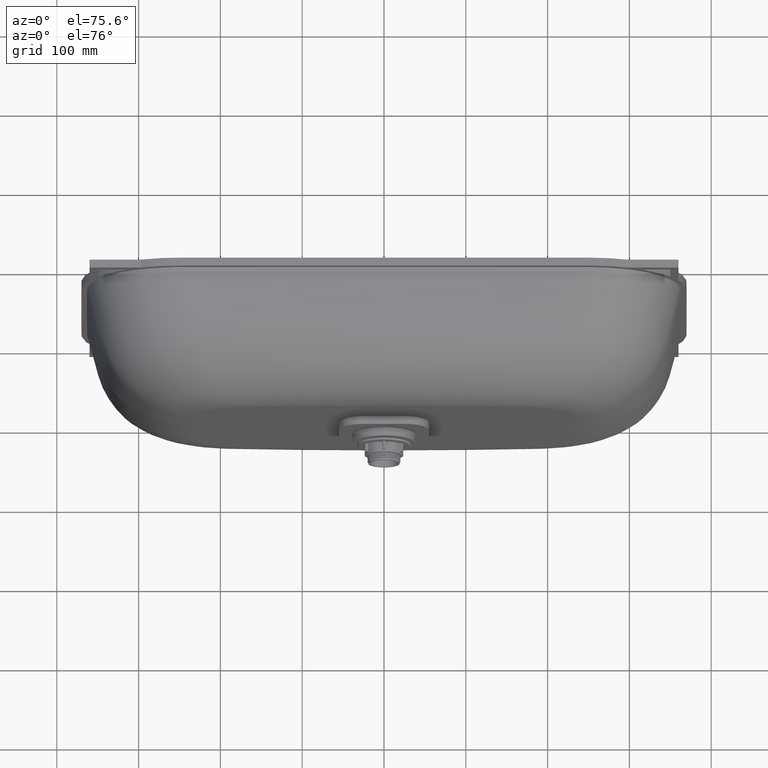
[diagram: clean part render]
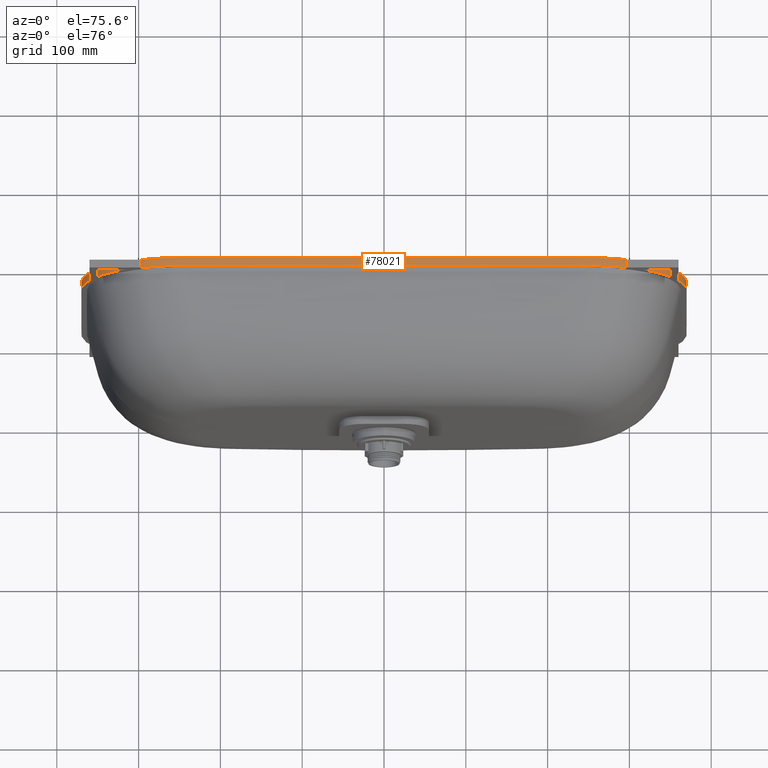
[diagram: same view with one face highlighted and labeled with its STEP entity id]
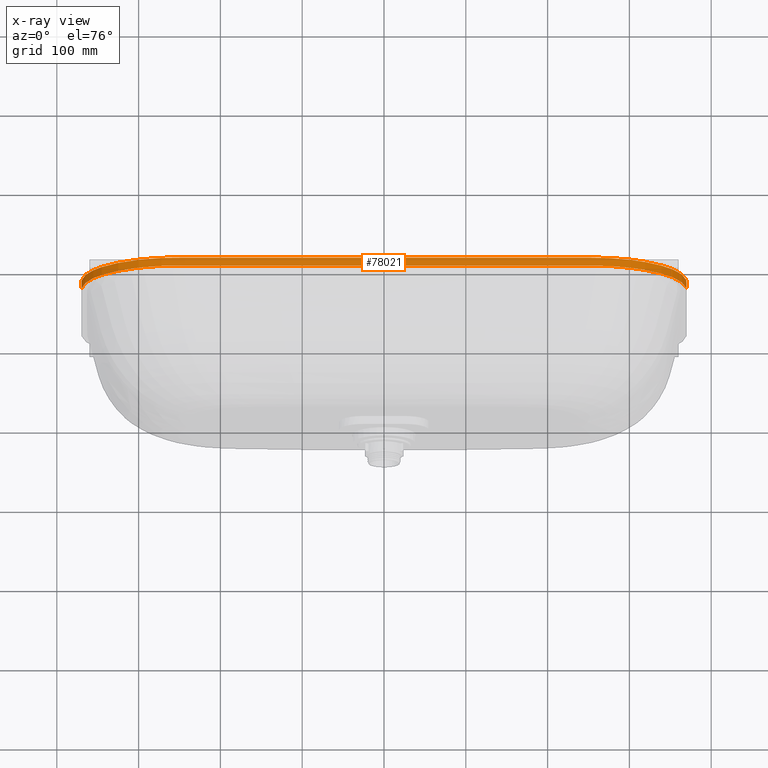
[diagram: x-ray of the same camera — body ghosted, the highlighted face saturated]
A machine part, auxiliary view. The second image highlights one B-rep face of the part: STEP entity #78021.
The next image is the same camera in x-ray: the body ghosted, the highlighted face saturated — about 0% of this face is hidden behind the body in this view.
In plain terms, the highlighted face is a freeform B-spline surface patch.
Its self-contained STEP definition (entity closure, byte-faithful):
#113 = CARTESIAN_POINT ( 'NONE',  ( 369.9837355351535280, 3.469446951953614189E-14, 112.2304330767920248 ) ) ;
#133 = CARTESIAN_POINT ( 'NONE',  ( -289.4804807030344023, -9.999999999999928946, 223.4557360990969528 ) ) ;
#179 = CARTESIAN_POINT ( 'NONE',  ( -369.2231796589291548, -9.999999999999960920, 123.9083132636468463 ) ) ;
#523 = CARTESIAN_POINT ( 'NONE',  ( 369.9999973128919919, -9.999999999999968026, 103.4197589538134423 ) ) ;
#545 = CARTESIAN_POINT ( 'NONE',  ( -254.1704036494610932, 7.285838599102589797E-14, 229.9357047427391478 ) ) ;
#591 = CARTESIAN_POINT ( 'NONE',  ( -272.5347273984072558, -9.999999999999928946, 227.9402078853941305 ) ) ;
#938 = CARTESIAN_POINT ( 'NONE',  ( 369.9999999808321149, 2.081668171172168513E-14, 64.89067556598752162 ) ) ;
#958 = CARTESIAN_POINT ( 'NONE',  ( -245.3670214626337724, -9.999999999999927169, 230.0000054136309586 ) ) ;
#1002 = CARTESIAN_POINT ( 'NONE',  ( -235.2282897767611303, -9.999999999999927169, 230.0000025992095516 ) ) ;
#1372 = CARTESIAN_POINT ( 'NONE',  ( -194.6720158728519436, 7.285838599102589797E-14, 230.0000000356702969 ) ) ;
#1421 = CARTESIAN_POINT ( 'NONE',  ( 64.89067382028734698, -9.999999999999927169, 229.9999999998671285 ) ) ;
#1779 = LINE ( 'NONE', #27400, #68443 ) ;
#1793 = CARTESIAN_POINT ( 'NONE',  ( -1.838806884535415520E-13, -9.999999999999927169, 229.9999999999805880 ) ) ;
#1841 = CARTESIAN_POINT ( 'NONE',  ( 248.4051379303400324, -9.999999999999927169, 230.0000288654553344 ) ) ;
#2211 = CARTESIAN_POINT ( 'NONE',  ( 178.4493543980382242, 7.285838599102589797E-14, 229.9999999906543451 ) ) ;
#2258 = CARTESIAN_POINT ( 'NONE',  ( 315.4333475073833597, -9.999999999999934275, 211.1954338164224225 ) ) ;
#2359 = CARTESIAN_POINT ( 'NONE',  ( 370.0000000003951754, 5.118853262884848698E-15, 16.22266841846510488 ) ) ;
#2628 = CARTESIAN_POINT ( 'NONE',  ( 245.3670214626335166, -9.999999999999927169, 230.0000054136308165 ) ) ;
#2672 = CARTESIAN_POINT ( 'NONE',  ( 369.9985107857468734, -9.999999999999966249, 110.8386633332187330 ) ) ;
#3041 = CARTESIAN_POINT ( 'NONE',  ( 252.1423367717181065, 7.285838599102589797E-14, 229.9854392652007959 ) ) ;
#3083 = CARTESIAN_POINT ( 'NONE',  ( 370.0000000051377924, -9.999999999999984013, 48.66800487696834665 ) ) ;
#3204 = CARTESIAN_POINT ( 'NONE',  ( -369.9999999215502839, 2.772712417528809835E-14, 87.87279466569543729 ) ) ;
#3604 = CARTESIAN_POINT ( 'NONE',  ( -369.6864430236645376, 3.758052570092898083E-14, 119.1001921969900650 ) ) ;
#4020 = CARTESIAN_POINT ( 'NONE',  ( -280.3363205952126123, 7.138488588416026799E-14, 226.2329616254816358 ) ) ;
#4447 = CARTESIAN_POINT ( 'NONE',  ( -241.3132199434998597, 7.257352404517443848E-14, 229.9999933736821731 ) ) ;
#4791 = CARTESIAN_POINT ( 'NONE',  ( -370.0000000051376787, 1.561251128379126385E-14, 48.66800487696811217 ) ) ;
#4860 = CARTESIAN_POINT ( 'NONE',  ( 32.44533689492779160, 7.257352613603510902E-14, 230.0000000000372893 ) ) ;
#5202 = CARTESIAN_POINT ( 'NONE',  ( -369.9999973128920487, -9.999999999999968026, 103.4197589538131723 ) ) ;
#5269 = CARTESIAN_POINT ( 'NONE',  ( 247.0602996470166488, 7.257352088615577570E-14, 229.9999833621211280 ) ) ;
#5595 = VERTEX_POINT ( 'NONE', #9767 ) ;
#5597 = CARTESIAN_POINT ( 'NONE',  ( 289.4804807030340612, -9.999999999999928946, 223.4557360990970380 ) ) ;
#5618 = CARTESIAN_POINT ( 'NONE',  ( -369.9985107857468734, 3.469446951953614189E-14, 110.8386633332183635 ) ) ;
#5686 = CARTESIAN_POINT ( 'NONE',  ( 301.3375124675763459, 6.903844104798722765E-14, 218.7966092659686694 ) ) ;
#6015 = CARTESIAN_POINT ( 'NONE',  ( 358.9368303385653007, 5.030698080332740574E-14, 160.6374205879357930 ) ) ;
#6035 = CARTESIAN_POINT ( 'NONE',  ( -365.5811764428860329, -9.999999999999955591, 142.7334832046060740 ) ) ;
#6082 = CARTESIAN_POINT ( 'NONE',  ( -369.9999999808320581, -9.999999999999978684, 64.89067556598732267 ) ) ;
#6102 = CARTESIAN_POINT ( 'NONE',  ( 369.9837355351535280, 3.541286203545991592E-14, 112.2304330767920248 ) ) ;
#6417 = CARTESIAN_POINT ( 'NONE',  ( 369.9117756355506117, -9.999999999999964473, 115.0811365367344905 ) ) ;
#6437 = CARTESIAN_POINT ( 'NONE',  ( -315.4333475073835302, 6.591949208711866959E-14, 211.1954338164223373 ) ) ;
#6482 = CARTESIAN_POINT ( 'NONE',  ( -369.9837355351535280, -9.999999999999966249, 112.2304330767915275 ) ) ;
#6822 = CARTESIAN_POINT ( 'NONE',  ( 369.9999697595850421, 3.295974604355933479E-14, 107.1399925168131375 ) ) ;
#6842 = CARTESIAN_POINT ( 'NONE',  ( -257.3966411606818383, -9.999999999999927169, 229.7905751632785041 ) ) ;
#6889 = CARTESIAN_POINT ( 'NONE',  ( -301.3375124675764596, -9.999999999999930722, 218.7966092659684705 ) ) ;
#6919 = EDGE_LOOP ( 'NONE', ( #15583, #73541, #79024, #73633 ) ) ;
#7243 = CARTESIAN_POINT ( 'NONE',  ( 370.0000000564166385, -9.999999999999975131, 78.40955897690213305 ) ) ;
#7266 = CARTESIAN_POINT ( 'NONE',  ( -248.4051379303404303, 7.285838599102589797E-14, 230.0000288654554481 ) ) ;
#7312 = CARTESIAN_POINT ( 'NONE',  ( -247.0602996470170183, -9.999999999999927169, 229.9999833621211849 ) ) ;
#7659 = CARTESIAN_POINT ( 'NONE',  ( 369.9999999999998863, 0.0000000000000000000, 5.753749085366989050E-13 ) ) ;
#7679 = CARTESIAN_POINT ( 'NONE',  ( -208.1909280709338361, -9.999999999999927169, 229.9999998948310633 ) ) ;
#7725 = CARTESIAN_POINT ( 'NONE',  ( -32.44533689492804029, -9.999999999999927169, 230.0000000000374314 ) ) ;
#8095 = CARTESIAN_POINT ( 'NONE',  ( -64.89067382028767383, 7.285838599102589797E-14, 229.9999999998672990 ) ) ;
#8144 = CARTESIAN_POINT ( 'NONE',  ( 241.3132199434992344, -9.999999999999927169, 229.9999933736821447 ) ) ;
#8516 = CARTESIAN_POINT ( 'NONE',  ( 156.8191275139742515, -9.999999999999927169, 230.0000000053949236 ) ) ;
#8562 = CARTESIAN_POINT ( 'NONE',  ( 280.3363205952121575, -9.999999999999928946, 226.2329616254817495 ) ) ;
#8665 = CARTESIAN_POINT ( 'NONE',  ( 369.9999999808321149, 2.047541364857566951E-14, 64.89067556598752162 ) ) ;
#8934 = CARTESIAN_POINT ( 'NONE',  ( 235.2282897767607324, 7.285838599102589797E-14, 230.0000025992093242 ) ) ;
#8979 = CARTESIAN_POINT ( 'NONE',  ( 369.6864430236645376, -9.999999999999962697, 119.1001921969906334 ) ) ;
#9341 = CARTESIAN_POINT ( 'NONE',  ( 250.7332074480156905, -9.999999999999927169, 229.9991818206130176 ) ) ;
#9384 = CARTESIAN_POINT ( 'NONE',  ( 369.9999999215503976, -9.999999999999971578, 87.87279466569570729 ) ) ;
#9508 = CARTESIAN_POINT ( 'NONE',  ( -370.0000000051376787, 1.535655966924677950E-14, 48.66800487696811217 ) ) ;
#9767 = CARTESIAN_POINT ( 'NONE',  ( -370.0000000000000000, 7.703719777548943412E-31, -3.426078865054194011E-14 ) ) ;
#9849 = CARTESIAN_POINT ( 'NONE',  ( 369.9999999999998863, 1.698670210949542022E-28, 5.754945131553057536E-13 ) ) ;
#9914 = CARTESIAN_POINT ( 'NONE',  ( -369.9985107857468734, 3.497370708824007795E-14, 110.8386633332183635 ) ) ;
#10319 = CARTESIAN_POINT ( 'NONE',  ( -315.4333475073835302, 6.663998841689094718E-14, 211.1954338164223373 ) ) ;
#10735 = CARTESIAN_POINT ( 'NONE',  ( -248.4051379303404303, 7.257353524414460064E-14, 230.0000288654554481 ) ) ;
#11088 = CARTESIAN_POINT ( 'NONE',  ( -369.9999999986166586, -9.999999999999989342, 32.44533702614217674 ) ) ;
#11160 = CARTESIAN_POINT ( 'NONE',  ( -64.89067382028767383, 7.257352613598147910E-14, 229.9999999998672990 ) ) ;
#11505 = CARTESIAN_POINT ( 'NONE',  ( -369.9999994738986970, 3.122502256758252770E-14, 97.33605917397690632 ) ) ;
#11575 = CARTESIAN_POINT ( 'NONE',  ( 235.2282897767607324, 7.257352695617023443E-14, 230.0000025992093242 ) ) ;
#11897 = CARTESIAN_POINT ( 'NONE',  ( 272.5347273984068011, 7.112366251504909087E-14, 227.9402078853942157 ) ) ;
#11919 = CARTESIAN_POINT ( 'NONE',  ( -370.0002737202537446, -9.999999999999966249, 109.9847503573808325 ) ) ;
#11988 = CARTESIAN_POINT ( 'NONE',  ( 272.5347273984068011, 7.192358536704890382E-14, 227.9402078853942157 ) ) ;
#12315 = CARTESIAN_POINT ( 'NONE',  ( 353.0913786025860759, -9.999999999999946709, 171.9959201989187818 ) ) ;
#12336 = CARTESIAN_POINT ( 'NONE',  ( -368.5694265312982907, 3.989863994746656317E-14, 128.6755109102219023 ) ) ;
#12384 = CARTESIAN_POINT ( 'NONE',  ( -370.0000000003951186, -9.999999999999994671, 16.22266841846471408 ) ) ;
#12404 = CARTESIAN_POINT ( 'NONE',  ( 369.2231796589290980, 3.909766613526030206E-14, 123.9083132636472584 ) ) ;
#12726 = CARTESIAN_POINT ( 'NONE',  ( 369.2231796589290980, 3.989863994746656317E-14, 123.9083132636472584 ) ) ;
#12746 = CARTESIAN_POINT ( 'NONE',  ( -330.7752597798501029, -9.999999999999937828, 199.4472116028093467 ) ) ;
#12792 = CARTESIAN_POINT ( 'NONE',  ( -369.9998421130367774, -9.999999999999966249, 109.3485733155331587 ) ) ;
#13125 = CARTESIAN_POINT ( 'NONE',  ( 370.0000523813991435, -9.999999999999966249, 108.4842689358035557 ) ) ;
#13146 = CARTESIAN_POINT ( 'NONE',  ( -266.2030324053482673, 7.285838599102589797E-14, 228.9327285942424908 ) ) ;
#13191 = CARTESIAN_POINT ( 'NONE',  ( -344.0916251262451055, -9.999999999999941380, 185.3011088497743231 ) ) ;
#13534 = CARTESIAN_POINT ( 'NONE',  ( 370.0000001376325827, 2.949029909160572061E-14, 93.28033090629530477 ) ) ;
#13556 = CARTESIAN_POINT ( 'NONE',  ( -249.2680254088367064, -9.999999999999927169, 229.9999129777617100 ) ) ;
#13602 = CARTESIAN_POINT ( 'NONE',  ( -249.9071089342735661, -9.999999999999927169, 230.0001508669374743 ) ) ;
#13613 = EDGE_CURVE ( 'NONE', #27047, #5595, #1779, .T. ) ;
#13955 = CARTESIAN_POINT ( 'NONE',  ( 369.9999999999998863, -9.999999999999998224, 5.407556139488744584 ) ) ;
#13976 = CARTESIAN_POINT ( 'NONE',  ( -227.1174660438720139, 7.285838599102589797E-14, 229.9999993046550912 ) ) ;
#14021 = CARTESIAN_POINT ( 'NONE',  ( -129.7813478840283494, -9.999999999999927169, 229.9999999981666576 ) ) ;
#14392 = CARTESIAN_POINT ( 'NONE',  ( -97.33601062392065728, -9.999999999999927169, 230.0000000004911556 ) ) ;
#14439 = CARTESIAN_POINT ( 'NONE',  ( 219.0059958477463908, -9.999999999999927169, 230.0000001821694298 ) ) ;
#14811 = CARTESIAN_POINT ( 'NONE',  ( 97.33601062392030201, 7.285838599102589797E-14, 230.0000000004907577 ) ) ;
#14859 = CARTESIAN_POINT ( 'NONE',  ( 261.4155354305584069, -9.999999999999927169, 229.4878407854312172 ) ) ;
#14961 = CARTESIAN_POINT ( 'NONE',  ( 370.0000001376325827, 2.943340231741271941E-14, 93.28033090629530477 ) ) ;
#15236 = CARTESIAN_POINT ( 'NONE',  ( 227.1174660438716160, -9.999999999999927169, 229.9999993046549207 ) ) ;
#15283 = CARTESIAN_POINT ( 'NONE',  ( 367.4470581483514593, -9.999999999999957367, 134.9774096808809816 ) ) ;
#15583 = ORIENTED_EDGE ( 'NONE', *, *, #53834, .T. ) ;
#15647 = CARTESIAN_POINT ( 'NONE',  ( 249.2680254088363085, 7.285838599102589797E-14, 229.9999129777617384 ) ) ;
#15691 = CARTESIAN_POINT ( 'NONE',  ( 370.0000015512933373, -9.999999999999969802, 100.7155903604962219 ) ) ;
#15809 = CARTESIAN_POINT ( 'NONE',  ( -370.0000000000000000, 1.706284420961569953E-15, 5.407556139488172597 ) ) ;
#16215 = CARTESIAN_POINT ( 'NONE',  ( -370.0000523813991435, 3.423080837808655089E-14, 108.4842689358032715 ) ) ;
#16622 = CARTESIAN_POINT ( 'NONE',  ( -353.0913786025861327, 5.427108873845920469E-14, 171.9959201989187250 ) ) ;
#17042 = CARTESIAN_POINT ( 'NONE',  ( -250.7332074480161452, 7.257326797009672420E-14, 229.9991818206130176 ) ) ;
#17390 = CARTESIAN_POINT ( 'NONE',  ( -370.0000000000000000, 1.734723475976807094E-15, 5.407556139488172597 ) ) ;
#17459 = CARTESIAN_POINT ( 'NONE',  ( -156.8191275139746210, 7.257352613772573260E-14, 230.0000000053952363 ) ) ;
#17808 = CARTESIAN_POINT ( 'NONE',  ( -370.0000001376324690, -9.999999999999971578, 93.28033090629507740 ) ) ;
#17879 = CARTESIAN_POINT ( 'NONE',  ( 208.1909280709335235, 7.257352610283856733E-14, 229.9999998948308644 ) ) ;
#18204 = CARTESIAN_POINT ( 'NONE',  ( 266.2030324053480399, -9.999999999999927169, 228.9327285942425192 ) ) ;
#18226 = CARTESIAN_POINT ( 'NONE',  ( -370.0000523813991435, 3.469446951953614189E-14, 108.4842689358032715 ) ) ;
#18296 = CARTESIAN_POINT ( 'NONE',  ( 257.3966411606814972, 7.250744483662612179E-14, 229.7905751632782767 ) ) ;
#18616 = CARTESIAN_POINT ( 'NONE',  ( 330.7752597798499892, 6.245004513516505540E-14, 199.4472116028094604 ) ) ;
#18637 = CARTESIAN_POINT ( 'NONE',  ( -369.2231796589291548, -9.999999999999960920, 123.9083132636468463 ) ) ;
#18705 = CARTESIAN_POINT ( 'NONE',  ( 365.5811764428856350, 4.503770510363108535E-14, 142.7334832046064150 ) ) ;
#19027 = CARTESIAN_POINT ( 'NONE',  ( 368.5694265312981770, -9.999999999999960920, 128.6755109102223287 ) ) ;
#19048 = CARTESIAN_POINT ( 'NONE',  ( -353.0913786025861327, 5.377642775528101993E-14, 171.9959201989187250 ) ) ;
#19093 = CARTESIAN_POINT ( 'NONE',  ( -370.0000102567384488, -9.999999999999968026, 105.4463998884247786 ) ) ;
#19113 = CARTESIAN_POINT ( 'NONE',  ( 369.9999973128919919, 3.263276773659048554E-14, 103.4197589538134423 ) ) ;
#19428 = CARTESIAN_POINT ( 'NONE',  ( 370.0002737202538583, 3.469446951953614189E-14, 109.9847503573812588 ) ) ;
#19448 = CARTESIAN_POINT ( 'NONE',  ( -272.5347273984072558, -9.999999999999928946, 227.9402078853941305 ) ) ;
#19492 = CARTESIAN_POINT ( 'NONE',  ( -362.6162986912610791, -9.999999999999952038, 151.8170165020855222 ) ) ;
#19834 = CARTESIAN_POINT ( 'NONE',  ( 369.9999994738989813, -9.999999999999969802, 97.33605917397717633 ) ) ;
#19856 = CARTESIAN_POINT ( 'NONE',  ( -250.7332074480161452, 7.285838599102589797E-14, 229.9991818206130176 ) ) ;
#19902 = CARTESIAN_POINT ( 'NONE',  ( -254.1704036494610932, -9.999999999999927169, 229.9357047427391478 ) ) ;
#20251 = CARTESIAN_POINT ( 'NONE',  ( 369.9999999986166017, 1.040834085586084257E-14, 32.44533702614248938 ) ) ;
#20272 = CARTESIAN_POINT ( 'NONE',  ( -235.2282897767611303, -9.999999999999927169, 230.0000025992095516 ) ) ;
#20317 = CARTESIAN_POINT ( 'NONE',  ( -194.6720158728519436, -9.999999999999927169, 230.0000000356702969 ) ) ;
#20696 = CARTESIAN_POINT ( 'NONE',  ( -156.8191275139746210, 7.285838599102589797E-14, 230.0000000053952363 ) ) ;
#20744 = CARTESIAN_POINT ( 'NONE',  ( 178.4493543980382242, -9.999999999999927169, 229.9999999906543451 ) ) ;
#21111 = CARTESIAN_POINT ( 'NONE',  ( 64.89067382028734698, -9.999999999999927169, 229.9999999998671285 ) ) ;
#21157 = CARTESIAN_POINT ( 'NONE',  ( 252.1423367717181065, -9.999999999999927169, 229.9854392652007959 ) ) ;
#21533 = CARTESIAN_POINT ( 'NONE',  ( 208.1909280709335235, 7.285838599102589797E-14, 229.9999998948308644 ) ) ;
#21580 = CARTESIAN_POINT ( 'NONE',  ( 358.9368303385653007, -9.999999999999950262, 160.6374205879357930 ) ) ;
#21951 = CARTESIAN_POINT ( 'NONE',  ( 248.4051379303400324, -9.999999999999927169, 230.0000288654553344 ) ) ;
#21998 = CARTESIAN_POINT ( 'NONE',  ( 369.9999697595850421, -9.999999999999968026, 107.1399925168131375 ) ) ;
#22401 = CARTESIAN_POINT ( 'NONE',  ( 369.9999999999998863, -10.00000000000000000, 5.785302792382651660E-13 ) ) ;
#22521 = CARTESIAN_POINT ( 'NONE',  ( -369.9999973128920487, 3.263276773659042243E-14, 103.4197589538131723 ) ) ;
#22921 = CARTESIAN_POINT ( 'NONE',  ( -365.5811764428860329, 4.503770510363100331E-14, 142.7334832046060740 ) ) ;
#23345 = CARTESIAN_POINT ( 'NONE',  ( -257.3966411606818383, 7.250744483662622276E-14, 229.7905751632785041 ) ) ;
#23690 = CARTESIAN_POINT ( 'NONE',  ( -370.0000000000000000, -10.00000000000000000, -3.122502256758252770E-14 ) ) ;
#23757 = CARTESIAN_POINT ( 'NONE',  ( -208.1909280709338361, 7.257352610283865568E-14, 229.9999998948310633 ) ) ;
#24104 = CARTESIAN_POINT ( 'NONE',  ( -370.0000000564165816, 2.428612866367529932E-14, 78.40955897690190568 ) ) ;
#24174 = CARTESIAN_POINT ( 'NONE',  ( 156.8191275139742515, 7.257352613772564425E-14, 230.0000000053949236 ) ) ;
#24502 = CARTESIAN_POINT ( 'NONE',  ( 257.3966411606814972, 7.285838599102589797E-14, 229.7905751632782767 ) ) ;
#24524 = CARTESIAN_POINT ( 'NONE',  ( -369.9999697595849852, -9.999999999999968026, 107.1399925168127538 ) ) ;
#24596 = CARTESIAN_POINT ( 'NONE',  ( 250.7332074480156905, 7.257326797009669895E-14, 229.9991818206130176 ) ) ;
#24921 = CARTESIAN_POINT ( 'NONE',  ( 315.4333475073833597, -9.999999999999934275, 211.1954338164224225 ) ) ;
#24941 = CARTESIAN_POINT ( 'NONE',  ( -369.9117756355504412, 3.642919299551294898E-14, 115.0811365367341494 ) ) ;
#25009 = CARTESIAN_POINT ( 'NONE',  ( 353.0913786025860759, 5.427108873845919838E-14, 171.9959201989187818 ) ) ;
#25323 = CARTESIAN_POINT ( 'NONE',  ( 365.5811764428856350, 4.510281037539698445E-14, 142.7334832046064150 ) ) ;
#25344 = CARTESIAN_POINT ( 'NONE',  ( -358.9368303385656418, -9.999999999999950262, 160.6374205879356225 ) ) ;
#25391 = CARTESIAN_POINT ( 'NONE',  ( -369.9999994738986970, -9.999999999999969802, 97.33605917397690632 ) ) ;
#25412 = CARTESIAN_POINT ( 'NONE',  ( 370.0000523813991435, 3.423080837808661400E-14, 108.4842689358035557 ) ) ;
#25733 = CARTESIAN_POINT ( 'NONE',  ( 369.9985107857468734, -9.999999999999966249, 110.8386633332187330 ) ) ;
#25754 = CARTESIAN_POINT ( 'NONE',  ( -289.4804807030344023, 7.112366251504909087E-14, 223.4557360990969528 ) ) ;
#25799 = CARTESIAN_POINT ( 'NONE',  ( -368.5694265312982907, -9.999999999999960920, 128.6755109102219023 ) ) ;
#26125 = LINE ( 'NONE', #51744, #59474 ) ;
#26141 = CARTESIAN_POINT ( 'NONE',  ( 369.9999973128919919, 3.295974604355933479E-14, 103.4197589538134423 ) ) ;
#26161 = CARTESIAN_POINT ( 'NONE',  ( -252.1423367717185897, -9.999999999999927169, 229.9854392652010233 ) ) ;
#26206 = CARTESIAN_POINT ( 'NONE',  ( -266.2030324053482673, -9.999999999999927169, 228.9327285942424908 ) ) ;
#26550 = CARTESIAN_POINT ( 'NONE',  ( 370.0000000051377924, -9.999999999999984013, 48.66800487696834665 ) ) ;
#26570 = CARTESIAN_POINT ( 'NONE',  ( -245.3670214626337724, 7.285838599102589797E-14, 230.0000054136309586 ) ) ;
#26616 = CARTESIAN_POINT ( 'NONE',  ( -227.1174660438720139, -9.999999999999927169, 229.9999993046550912 ) ) ;
#26992 = CARTESIAN_POINT ( 'NONE',  ( -178.4493543980385653, -9.999999999999927169, 229.9999999906547998 ) ) ;
#27039 = CARTESIAN_POINT ( 'NONE',  ( 97.33601062392030201, -9.999999999999927169, 230.0000000004907577 ) ) ;
#27047 = VERTEX_POINT ( 'NONE', #56310 ) ;
#27400 = CARTESIAN_POINT ( 'NONE',  ( -370.0000000000000000, -10.00000000000000000, -3.122502256758252770E-14 ) ) ;
#27414 = CARTESIAN_POINT ( 'NONE',  ( -1.838806884535415520E-13, 7.285838599102589797E-14, 229.9999999999805880 ) ) ;
#27462 = CARTESIAN_POINT ( 'NONE',  ( 249.2680254088363085, -9.999999999999927169, 229.9999129777617384 ) ) ;
#27831 = CARTESIAN_POINT ( 'NONE',  ( 194.6720158728516594, -9.999999999999927169, 230.0000000356700127 ) ) ;
#27878 = CARTESIAN_POINT ( 'NONE',  ( 330.7752597798499892, -9.999999999999937828, 199.4472116028094604 ) ) ;
#27980 = CARTESIAN_POINT ( 'NONE',  ( 369.9999999999998863, 1.706284420961725950E-15, 5.407556139488741032 ) ) ;
#28249 = CARTESIAN_POINT ( 'NONE',  ( 245.3670214626335166, 7.285838599102589797E-14, 230.0000054136308165 ) ) ;
#28296 = CARTESIAN_POINT ( 'NONE',  ( 370.0002737202538583, -9.999999999999966249, 109.9847503573812588 ) ) ;
#28662 = CARTESIAN_POINT ( 'NONE',  ( 254.1704036494607521, -9.999999999999927169, 229.9357047427392331 ) ) ;
#28705 = CARTESIAN_POINT ( 'NONE',  ( 369.9999999986166017, -9.999999999999989342, 32.44533702614248938 ) ) ;
#28824 = CARTESIAN_POINT ( 'NONE',  ( -370.0000001376324690, 2.943340231741267523E-14, 93.28033090629507740 ) ) ;
#29222 = CARTESIAN_POINT ( 'NONE',  ( -369.2231796589291548, 3.909766613526019477E-14, 123.9083132636468463 ) ) ;
#29641 = CARTESIAN_POINT ( 'NONE',  ( -272.5347273984072558, 7.192358536704890382E-14, 227.9402078853941305 ) ) ;
#30066 = CARTESIAN_POINT ( 'NONE',  ( -235.2282897767611303, 7.257352695617032278E-14, 230.0000025992095516 ) ) ;
#30415 = CARTESIAN_POINT ( 'NONE',  ( -369.9999999808320581, -9.999999999999978684, 64.89067556598732267 ) ) ;
#30483 = CARTESIAN_POINT ( 'NONE',  ( 64.89067382028734698, 7.257352613598141599E-14, 229.9999999998671285 ) ) ;
#30826 = CARTESIAN_POINT ( 'NONE',  ( -369.9999973128920487, 3.295974604355933479E-14, 103.4197589538131723 ) ) ;
#30894 = CARTESIAN_POINT ( 'NONE',  ( 248.4051379303400324, 7.257353524414453753E-14, 230.0000288654553344 ) ) ;
#31224 = CARTESIAN_POINT ( 'NONE',  ( 289.4804807030340612, 7.112366251504909087E-14, 223.4557360990970380 ) ) ;
#31244 = CARTESIAN_POINT ( 'NONE',  ( -369.9837355351535280, -9.999999999999966249, 112.2304330767915275 ) ) ;
#31315 = CARTESIAN_POINT ( 'NONE',  ( 315.4333475073833597, 6.663998841689094718E-14, 211.1954338164224225 ) ) ;
#31635 = CARTESIAN_POINT ( 'NONE',  ( 362.6162986912609085, -9.999999999999952038, 151.8170165020856643 ) ) ;
#31656 = CARTESIAN_POINT ( 'NONE',  ( -365.5811764428860329, 4.510281037539698445E-14, 142.7334832046060740 ) ) ;
#31702 = CARTESIAN_POINT ( 'NONE',  ( -370.0000000564165816, -9.999999999999975131, 78.40955897690190568 ) ) ;
#31723 = CARTESIAN_POINT ( 'NONE',  ( 369.9985107857468734, 3.497370708824017262E-14, 110.8386633332187330 ) ) ;
#32037 = CARTESIAN_POINT ( 'NONE',  ( 369.9117756355506117, 3.642919299551294898E-14, 115.0811365367344905 ) ) ;
#32057 = CARTESIAN_POINT ( 'NONE',  ( -301.3375124675764596, -9.999999999999930722, 218.7966092659684705 ) ) ;
#32102 = CARTESIAN_POINT ( 'NONE',  ( -369.9117756355504412, -9.999999999999964473, 115.0811365367341494 ) ) ;
#32440 = CARTESIAN_POINT ( 'NONE',  ( 370.0000102567383919, -9.999999999999968026, 105.4463998884250771 ) ) ;
#32460 = CARTESIAN_POINT ( 'NONE',  ( -257.3966411606818383, 7.285838599102589797E-14, 229.7905751632785041 ) ) ;
#32505 = CARTESIAN_POINT ( 'NONE',  ( -289.4804807030344023, -9.999999999999928946, 223.4557360990969528 ) ) ;
#32859 = CARTESIAN_POINT ( 'NONE',  ( 370.0000000564166385, 2.428612866367529932E-14, 78.40955897690213305 ) ) ;
#32881 = CARTESIAN_POINT ( 'NONE',  ( -247.0602996470170183, -9.999999999999927169, 229.9999833621211849 ) ) ;
#32926 = CARTESIAN_POINT ( 'NONE',  ( -245.3670214626337724, -9.999999999999927169, 230.0000054136309586 ) ) ;
#33294 = CARTESIAN_POINT ( 'NONE',  ( -208.1909280709338361, 7.285838599102589797E-14, 229.9999998948310633 ) ) ;
#33340 = CARTESIAN_POINT ( 'NONE',  ( -1.838806884535415520E-13, -9.999999999999927169, 229.9999999999805880 ) ) ;
#33714 = CARTESIAN_POINT ( 'NONE',  ( -32.44533689492804029, -9.999999999999927169, 230.0000000000374314 ) ) ;
#33764 = CARTESIAN_POINT ( 'NONE',  ( 245.3670214626335166, -9.999999999999927169, 230.0000054136308165 ) ) ;
#34135 = CARTESIAN_POINT ( 'NONE',  ( 156.8191275139742515, 7.285838599102589797E-14, 230.0000000053949236 ) ) ;
#34182 = CARTESIAN_POINT ( 'NONE',  ( 289.4804807030340612, -9.999999999999928946, 223.4557360990970380 ) ) ;
#34283 = CARTESIAN_POINT ( 'NONE',  ( 370.0000000051377924, 1.535655966924682998E-14, 48.66800487696834665 ) ) ;
#34549 = CARTESIAN_POINT ( 'NONE',  ( 241.3132199434992344, -9.999999999999927169, 229.9999933736821447 ) ) ;
#34596 = CARTESIAN_POINT ( 'NONE',  ( 369.9117756355506117, -9.999999999999964473, 115.0811365367344905 ) ) ;
#34959 = CARTESIAN_POINT ( 'NONE',  ( 250.7332074480156905, 7.285838599102589797E-14, 229.9991818206130176 ) ) ;
#35003 = CARTESIAN_POINT ( 'NONE',  ( 370.0000000564166385, -9.999999999999975131, 78.40955897690213305 ) ) ;
#35124 = CARTESIAN_POINT ( 'NONE',  ( -369.9999999808320581, 2.047541364857563164E-14, 64.89067556598732267 ) ) ;
#35532 = CARTESIAN_POINT ( 'NONE',  ( -369.9837355351535280, 3.541286203545978970E-14, 112.2304330767915275 ) ) ;
#35740 = B_SPLINE_CURVE_WITH_KNOTS ( 'NONE', 3,
 ( #73365, #15809, #41426, #67053, #9508, #35124, #60740, #3204, #28824, #54435, #80081, #22521, #48132, #73769, #16215, #41830, #67458, #9914, #35532, #61146, #3604, #29222, #54834, #80481, #22921, #48539, #74177, #16622, #42238, #67865, #10319, #35938, #61556, #4020, #29641, #55253, #80902, #23345, #48960, #74597, #17042, #42657, #68281, #10735, #36355, #61979, #4447, #30066, #55671, #81319, #23757, #49374, #75017, #17459, #43077, #68701, #11160, #36778, #62395, #4860, #30483, #56085, #81734, #24174, #49795, #75436, #17879, #43500, #69125, #11575, #37190, #62811, #5269, #30894, #56502, #82152, #24596, #50214, #75853, #18296, #43913, #69536, #11988, #37604, #63224, #5686, #31315, #56922, #82571, #25009, #50626, #76264, #18705, #44323, #69954, #12404, #38022, #63642, #6102, #31723, #57328, #82975, #25412, #51028, #76668, #19113, #44733, #70362, #14961, #40582, #66208, #8665, #34283, #59898, #2359, #27980, #53596 ),
 .UNSPECIFIED., .F., .F.,
 ( 4, 1, 1, 1, 1, 1, 1, 1, 1, 1, 1, 1, 1, 1, 1, 1, 1, 1, 1, 1, 1, 1, 1, 1, 1, 1, 1, 1, 1, 1, 1, 1, 1, 1, 1, 1, 1, 1, 1, 1, 1, 1, 1, 1, 1, 1, 1, 1, 1, 1, 1, 1, 1, 1, 1, 1, 1, 1, 1, 1, 1, 1, 1, 1, 1, 1, 1, 1, 1, 1, 1, 1, 1, 1, 1, 1, 1, 1, 1, 1, 1, 1, 1, 1, 1, 1, 1, 1, 1, 1, 1, 1, 1, 1, 1, 1, 1, 1, 1, 1, 1, 1, 1, 1, 1, 1, 1, 1, 1, 1, 1, 1, 1, 1, 4 ),
 ( 0.0000000000000000000, 0.007812500000000000000, 0.01562500000000000000, 0.02343750000000000000, 0.03125000000000000000, 0.03906250000000000000, 0.04296875000000000000, 0.04492187500000000000, 0.04687500000000000000, 0.04882812500000000000, 0.04980468750000000000, 0.05078125000000000000, 0.05175781250000000000, 0.05224609375000000000, 0.05273437500000000000, 0.05297851562500000000, 0.05322265625000000000, 0.05371093750000000000, 0.05468750000000000000, 0.05664062500000000000, 0.05859375000000000000, 0.06054687500000000000, 0.06250000000000000000, 0.06640625000000000000, 0.07031250000000000000, 0.07421875000000000000, 0.07812500000000000000, 0.08593750000000000000, 0.09375000000000000000, 0.1015625000000000000, 0.1093750000000000000, 0.1132812500000000000, 0.1171875000000000000, 0.1210937500000000000, 0.1230468750000000000, 0.1250000000000000000, 0.1269531250000000000, 0.1279296875000000000, 0.1289062500000000000, 0.1293945312500000000, 0.1296386718750000000, 0.1298828125000000000, 0.1303710937500000000, 0.1308593750000000000, 0.1318359375000000000, 0.1328125000000000000, 0.1367187500000000000, 0.1406250000000000000, 0.1445312500000000000, 0.1484375000000000000, 0.1562500000000000000, 0.1640625000000000000, 0.1718750000000000000, 0.1875000000000000000, 0.2031250000000000000, 0.2187500000000000000, 0.2343750000000000000, 0.2500000000000000000, 0.2656250000000000000, 0.2812500000000000000, 0.2968750000000000000, 0.3125000000000000000, 0.3281250000000000000, 0.3359375000000000000, 0.3437500000000000000, 0.3515625000000000000, 0.3554687500000000000, 0.3593750000000000000, 0.3632812500000000000, 0.3671875000000000000, 0.3681640625000000000, 0.3691406250000000000, 0.3696289062500000000, 0.3701171875000000000, 0.3703613281250000000, 0.3706054687500000000, 0.3710937500000000000, 0.3720703125000000000, 0.3730468750000000000, 0.3750000000000000000, 0.3769531250000000000, 0.3789062500000000000, 0.3828125000000000000, 0.3867187500000000000, 0.3906250000000000000, 0.3984375000000000000, 0.4062500000000000000, 0.4140625000000000000, 0.4218750000000000000, 0.4257812500000000000, 0.4296875000000000000, 0.4335937500000000000, 0.4375000000000000000, 0.4394531250000000000, 0.4414062500000000000, 0.4433593750000000000, 0.4453125000000000000, 0.4462890625000000000, 0.4467773437500000000, 0.4470214843750000000, 0.4472656250000000000, 0.4477539062500000000, 0.4482421875000000000, 0.4492187500000000000, 0.4501953125000000000, 0.4511718750000000000, 0.4531250000000000000, 0.4550781250000000000, 0.4570312500000000000, 0.4609375000000000000, 0.4687500000000000000, 0.4765625000000000000, 0.4843750000000000000, 0.4921875000000000000, 0.5000000000000000000 ),
 .UNSPECIFIED. ) ;
#35938 = CARTESIAN_POINT ( 'NONE',  ( -301.3375124675764596, 6.903844104798718978E-14, 218.7966092659684705 ) ) ;
#36355 = CARTESIAN_POINT ( 'NONE',  ( -247.0602996470170183, 7.257352088615582619E-14, 229.9999833621211849 ) ) ;
#36708 = CARTESIAN_POINT ( 'NONE',  ( -369.9999999986166586, 1.040834085586084257E-14, 32.44533702614217674 ) ) ;
#36778 = CARTESIAN_POINT ( 'NONE',  ( -32.44533689492804029, 7.257352613603515950E-14, 230.0000000000374314 ) ) ;
#37122 = CARTESIAN_POINT ( 'NONE',  ( -370.0000015512933942, -9.999999999999969802, 100.7155903604958809 ) ) ;
#37190 = CARTESIAN_POINT ( 'NONE',  ( 241.3132199434992344, 7.257352404517441324E-14, 229.9999933736821447 ) ) ;
#37513 = CARTESIAN_POINT ( 'NONE',  ( 280.3363205952121575, -9.999999999999928946, 226.2329616254817495 ) ) ;
#37535 = CARTESIAN_POINT ( 'NONE',  ( -370.0002737202537446, 3.469446951953614189E-14, 109.9847503573808325 ) ) ;
#37604 = CARTESIAN_POINT ( 'NONE',  ( 280.3363205952121575, 7.138488588416028062E-14, 226.2329616254817495 ) ) ;
#37931 = CARTESIAN_POINT ( 'NONE',  ( 353.0913786025860759, 5.377642775528101993E-14, 171.9959201989187818 ) ) ;
#37951 = CARTESIAN_POINT ( 'NONE',  ( -367.4470581483515730, -9.999999999999957367, 134.9774096808804984 ) ) ;
#37999 = CARTESIAN_POINT ( 'NONE',  ( -369.9999999986166586, -9.999999999999989342, 32.44533702614217674 ) ) ;
#38022 = CARTESIAN_POINT ( 'NONE',  ( 369.6864430236645376, 3.758052570092913230E-14, 119.1001921969906334 ) ) ;
#38338 = CARTESIAN_POINT ( 'NONE',  ( 369.6864430236645376, -9.999999999999962697, 119.1001921969906334 ) ) ;
#38359 = CARTESIAN_POINT ( 'NONE',  ( -330.7752597798501029, 6.245004513516505540E-14, 199.4472116028093467 ) ) ;
#38405 = CARTESIAN_POINT ( 'NONE',  ( -370.0002737202537446, -9.999999999999966249, 109.9847503573808325 ) ) ;
#38738 = CARTESIAN_POINT ( 'NONE',  ( 370.0000523813991435, 3.469446951953614189E-14, 108.4842689358035557 ) ) ;
#38759 = CARTESIAN_POINT ( 'NONE',  ( -261.4155354305588048, -9.999999999999927169, 229.4878407854311604 ) ) ;
#38803 = CARTESIAN_POINT ( 'NONE',  ( -330.7752597798501029, -9.999999999999937828, 199.4472116028093467 ) ) ;
#39156 = CARTESIAN_POINT ( 'NONE',  ( 369.9999999215503976, -9.999999999999971578, 87.87279466569570729 ) ) ;
#39178 = CARTESIAN_POINT ( 'NONE',  ( -249.2680254088367064, 7.285838599102589797E-14, 229.9999129777617100 ) ) ;
#39225 = CARTESIAN_POINT ( 'NONE',  ( -249.2680254088367064, -9.999999999999927169, 229.9999129777617100 ) ) ;
#39578 = CARTESIAN_POINT ( 'NONE',  ( 369.9999999999998863, 1.734723475976807094E-15, 5.407556139488741032 ) ) ;
#39598 = CARTESIAN_POINT ( 'NONE',  ( -219.0059958477467887, -9.999999999999927169, 230.0000001821697140 ) ) ;
#39643 = CARTESIAN_POINT ( 'NONE',  ( -97.33601062392065728, -9.999999999999927169, 230.0000000004911556 ) ) ;
#40012 = CARTESIAN_POINT ( 'NONE',  ( -97.33601062392065728, 7.285838599102589797E-14, 230.0000000004911556 ) ) ;
#40059 = CARTESIAN_POINT ( 'NONE',  ( 227.1174660438716160, -9.999999999999927169, 229.9999993046549207 ) ) ;
#40432 = CARTESIAN_POINT ( 'NONE',  ( 129.7813478840280368, -9.999999999999927169, 229.9999999981663450 ) ) ;
#40480 = CARTESIAN_POINT ( 'NONE',  ( 266.2030324053480399, -9.999999999999927169, 228.9327285942425192 ) ) ;
#40582 = CARTESIAN_POINT ( 'NONE',  ( 369.9999999215503976, 2.772712417528816461E-14, 87.87279466569570729 ) ) ;
#40855 = CARTESIAN_POINT ( 'NONE',  ( 227.1174660438716160, 7.285838599102589797E-14, 229.9999993046549207 ) ) ;
#40899 = CARTESIAN_POINT ( 'NONE',  ( 368.5694265312981770, -9.999999999999960920, 128.6755109102223287 ) ) ;
#41259 = CARTESIAN_POINT ( 'NONE',  ( 249.9071089342731966, -9.999999999999927169, 230.0001508669372754 ) ) ;
#41305 = CARTESIAN_POINT ( 'NONE',  ( 369.9999994738989813, -9.999999999999969802, 97.33605917397717633 ) ) ;
#41426 = CARTESIAN_POINT ( 'NONE',  ( -370.0000000003951186, 5.118853262884746935E-15, 16.22266841846471053 ) ) ;
#41830 = CARTESIAN_POINT ( 'NONE',  ( -369.9998421130367774, 3.450352844979006073E-14, 109.3485733155331587 ) ) ;
#42238 = CARTESIAN_POINT ( 'NONE',  ( -344.0916251262451055, 5.846936898323132487E-14, 185.3011088497743231 ) ) ;
#42657 = CARTESIAN_POINT ( 'NONE',  ( -249.9071089342735661, 7.257357374013479164E-14, 230.0001508669374743 ) ) ;
#43008 = CARTESIAN_POINT ( 'NONE',  ( -370.0000000003951186, -9.999999999999994671, 16.22266841846471408 ) ) ;
#43077 = CARTESIAN_POINT ( 'NONE',  ( -129.7813478840283494, 7.257352613544485173E-14, 229.9999999981666576 ) ) ;
#43431 = CARTESIAN_POINT ( 'NONE',  ( -370.0000001376324690, 2.949029909160572061E-14, 93.28033090629507740 ) ) ;
#43500 = CARTESIAN_POINT ( 'NONE',  ( 219.0059958477463908, 7.257352619350453473E-14, 230.0000001821694298 ) ) ;
#43822 = CARTESIAN_POINT ( 'NONE',  ( 266.2030324053480399, 7.285838599102589797E-14, 228.9327285942425192 ) ) ;
#43844 = CARTESIAN_POINT ( 'NONE',  ( -369.9998421130367774, -9.999999999999966249, 109.3485733155331587 ) ) ;
#43913 = CARTESIAN_POINT ( 'NONE',  ( 261.4155354305584069, 7.241192091800459103E-14, 229.4878407854312172 ) ) ;
#44235 = CARTESIAN_POINT ( 'NONE',  ( 344.0916251262449350, -9.999999999999941380, 185.3011088497744367 ) ) ;
#44256 = CARTESIAN_POINT ( 'NONE',  ( -369.2231796589291548, 3.989863994746656317E-14, 123.9083132636468463 ) ) ;
#44303 = CARTESIAN_POINT ( 'NONE',  ( -370.0000000000000000, -10.00000000000000000, -3.122502256758252770E-14 ) ) ;
#44323 = CARTESIAN_POINT ( 'NONE',  ( 367.4470581483514593, 4.259037638803540336E-14, 134.9774096808809816 ) ) ;
#44646 = CARTESIAN_POINT ( 'NONE',  ( 368.5694265312981770, 3.989863994746656317E-14, 128.6755109102223287 ) ) ;
#44666 = CARTESIAN_POINT ( 'NONE',  ( -344.0916251262451055, -9.999999999999941380, 185.3011088497743231 ) ) ;
#44712 = CARTESIAN_POINT ( 'NONE',  ( -369.9999697595849852, -9.999999999999968026, 107.1399925168127538 ) ) ;
#44733 = CARTESIAN_POINT ( 'NONE',  ( 370.0000015512933373, 3.177950230144561223E-14, 100.7155903604962219 ) ) ;
#45050 = CARTESIAN_POINT ( 'NONE',  ( 369.9998421130369479, -9.999999999999966249, 109.3485733155334856 ) ) ;
#45070 = CARTESIAN_POINT ( 'NONE',  ( -272.5347273984072558, 7.112366251504909087E-14, 227.9402078853941305 ) ) ;
#45114 = CARTESIAN_POINT ( 'NONE',  ( -358.9368303385656418, -9.999999999999950262, 160.6374205879356225 ) ) ;
#45456 = CARTESIAN_POINT ( 'NONE',  ( 369.9999994738989813, 3.122502256758252770E-14, 97.33605917397717633 ) ) ;
#45479 = CARTESIAN_POINT ( 'NONE',  ( -249.9071089342735661, -9.999999999999927169, 230.0001508669374743 ) ) ;
#45523 = CARTESIAN_POINT ( 'NONE',  ( -252.1423367717185897, -9.999999999999927169, 229.9854392652010233 ) ) ;
#45873 = CARTESIAN_POINT ( 'NONE',  ( 370.0000000003951754, -9.999999999999994671, 16.22266841846510843 ) ) ;
#45894 = CARTESIAN_POINT ( 'NONE',  ( -235.2282897767611303, 7.285838599102589797E-14, 230.0000025992095516 ) ) ;
#45940 = CARTESIAN_POINT ( 'NONE',  ( -178.4493543980385653, -9.999999999999927169, 229.9999999906547998 ) ) ;
#46315 = CARTESIAN_POINT ( 'NONE',  ( -129.7813478840283494, -9.999999999999927169, 229.9999999981666576 ) ) ;
#46362 = CARTESIAN_POINT ( 'NONE',  ( 194.6720158728516594, -9.999999999999927169, 230.0000000356700127 ) ) ;
#46729 = CARTESIAN_POINT ( 'NONE',  ( 64.89067382028734698, 7.285838599102589797E-14, 229.9999999998671285 ) ) ;
#46776 = CARTESIAN_POINT ( 'NONE',  ( 254.1704036494607521, -9.999999999999927169, 229.9357047427392331 ) ) ;
#47148 = CARTESIAN_POINT ( 'NONE',  ( 219.0059958477463908, -9.999999999999927169, 230.0000001821694298 ) ) ;
#47193 = CARTESIAN_POINT ( 'NONE',  ( 362.6162986912609085, -9.999999999999952038, 151.8170165020856643 ) ) ;
#47564 = CARTESIAN_POINT ( 'NONE',  ( 248.4051379303400324, 7.285838599102589797E-14, 230.0000288654553344 ) ) ;
#47611 = CARTESIAN_POINT ( 'NONE',  ( 370.0000102567383919, -9.999999999999968026, 105.4463998884250771 ) ) ;
#48132 = CARTESIAN_POINT ( 'NONE',  ( -370.0000102567384488, 3.327224807935724776E-14, 105.4463998884247786 ) ) ;
#48539 = CARTESIAN_POINT ( 'NONE',  ( -362.6162986912610791, 4.790389658698779802E-14, 151.8170165020855222 ) ) ;
#48960 = CARTESIAN_POINT ( 'NONE',  ( -254.1704036494610932, 7.255323859892229750E-14, 229.9357047427391478 ) ) ;
#49305 = CARTESIAN_POINT ( 'NONE',  ( -370.0000000000000000, 0.0000000000000000000, -3.438039326914875710E-14 ) ) ;
#49374 = CARTESIAN_POINT ( 'NONE',  ( -194.6720158728519436, 7.257352614727864884E-14, 230.0000000356702969 ) ) ;
#49723 = CARTESIAN_POINT ( 'NONE',  ( -369.9999999215502839, -9.999999999999971578, 87.87279466569543729 ) ) ;
#49795 = CARTESIAN_POINT ( 'NONE',  ( 178.4493543980382242, 7.257352613307444462E-14, 229.9999999906543451 ) ) ;
#49805 = VERTEX_POINT ( 'NONE', #82667 ) ;
#50120 = CARTESIAN_POINT ( 'NONE',  ( 261.4155354305584069, -9.999999999999927169, 229.4878407854312172 ) ) ;
#50146 = CARTESIAN_POINT ( 'NONE',  ( -369.9999697595849852, 3.295974604355933479E-14, 107.1399925168127538 ) ) ;
#50214 = CARTESIAN_POINT ( 'NONE',  ( 252.1423367717181065, 7.256893168442546247E-14, 229.9854392652007959 ) ) ;
#50537 = CARTESIAN_POINT ( 'NONE',  ( 315.4333475073833597, 6.591949208711866959E-14, 211.1954338164224225 ) ) ;
#50557 = CARTESIAN_POINT ( 'NONE',  ( -369.6864430236645376, -9.999999999999962697, 119.1001921969900650 ) ) ;
#50626 = CARTESIAN_POINT ( 'NONE',  ( 358.9368303385653007, 5.068706104983447205E-14, 160.6374205879357930 ) ) ;
#50941 = CARTESIAN_POINT ( 'NONE',  ( 367.4470581483514593, -9.999999999999957367, 134.9774096808809816 ) ) ;
#50961 = CARTESIAN_POINT ( 'NONE',  ( -358.9368303385656418, 5.030698080332740574E-14, 160.6374205879356225 ) ) ;
#51008 = CARTESIAN_POINT ( 'NONE',  ( -370.0000015512933942, -9.999999999999969802, 100.7155903604958809 ) ) ;
#51028 = CARTESIAN_POINT ( 'NONE',  ( 369.9999697595850421, 3.380663933535774206E-14, 107.1399925168131375 ) ) ;
#51350 = CARTESIAN_POINT ( 'NONE',  ( 369.9985107857468734, 3.469446951953614189E-14, 110.8386633332187330 ) ) ;
#51371 = CARTESIAN_POINT ( 'NONE',  ( -280.3363205952126123, -9.999999999999928946, 226.2329616254816358 ) ) ;
#51417 = CARTESIAN_POINT ( 'NONE',  ( -367.4470581483515730, -9.999999999999957367, 134.9774096808804984 ) ) ;
#51541 = EDGE_CURVE ( 'NONE', #5595, #77720, #35740, .T. ) ;
#51744 = CARTESIAN_POINT ( 'NONE',  ( 369.9999999999998863, -10.00000000000000000, 5.785302792382651660E-13 ) ) ;
#51760 = CARTESIAN_POINT ( 'NONE',  ( 370.0000015512933373, -9.999999999999969802, 100.7155903604962219 ) ) ;
#51780 = CARTESIAN_POINT ( 'NONE',  ( -252.1423367717185897, 7.285838599102589797E-14, 229.9854392652010233 ) ) ;
#51825 = CARTESIAN_POINT ( 'NONE',  ( -261.4155354305588048, -9.999999999999927169, 229.4878407854311604 ) ) ;
#52168 = CARTESIAN_POINT ( 'NONE',  ( 370.0000000051377924, 1.561251128379126385E-14, 48.66800487696834665 ) ) ;
#52189 = CARTESIAN_POINT ( 'NONE',  ( -241.3132199434998597, -9.999999999999927169, 229.9999933736821731 ) ) ;
#52234 = CARTESIAN_POINT ( 'NONE',  ( -219.0059958477467887, -9.999999999999927169, 230.0000001821697140 ) ) ;
#52608 = CARTESIAN_POINT ( 'NONE',  ( -178.4493543980385653, 7.285838599102589797E-14, 229.9999999906547998 ) ) ;
#52657 = CARTESIAN_POINT ( 'NONE',  ( 129.7813478840280368, -9.999999999999927169, 229.9999999981663450 ) ) ;
#53017 = DIRECTION ( 'NONE',  ( 3.108277162125713320E-32, 1.000000000000000000, -3.155370701566232354E-16 ) ) ;
#53031 = CARTESIAN_POINT ( 'NONE',  ( 32.44533689492779160, -9.999999999999927169, 230.0000000000372893 ) ) ;
#53079 = CARTESIAN_POINT ( 'NONE',  ( 249.9071089342731966, -9.999999999999927169, 230.0001508669372754 ) ) ;
#53447 = CARTESIAN_POINT ( 'NONE',  ( 194.6720158728516594, 7.285838599102589797E-14, 230.0000000356700127 ) ) ;
#53494 = CARTESIAN_POINT ( 'NONE',  ( 344.0916251262449350, -9.999999999999941380, 185.3011088497744367 ) ) ;
#53596 = CARTESIAN_POINT ( 'NONE',  ( 369.9999999999998863, 1.698670210949542022E-28, 5.754945131553057536E-13 ) ) ;
#53834 = EDGE_CURVE ( 'NONE', #27047, #49805, #68777, .T. ) ;
#53865 = CARTESIAN_POINT ( 'NONE',  ( 247.0602996470166488, -9.999999999999927169, 229.9999833621211280 ) ) ;
#53910 = CARTESIAN_POINT ( 'NONE',  ( 369.9998421130369479, -9.999999999999966249, 109.3485733155334856 ) ) ;
#54317 = CARTESIAN_POINT ( 'NONE',  ( 370.0000000003951754, -9.999999999999994671, 16.22266841846510843 ) ) ;
#54435 = CARTESIAN_POINT ( 'NONE',  ( -369.9999994738986970, 3.071313493234839284E-14, 97.33605917397690632 ) ) ;
#54834 = CARTESIAN_POINT ( 'NONE',  ( -368.5694265312982907, 4.060189371351803573E-14, 128.6755109102219023 ) ) ;
#55253 = CARTESIAN_POINT ( 'NONE',  ( -266.2030324053482673, 7.223676244358868520E-14, 228.9327285942424908 ) ) ;
#55671 = CARTESIAN_POINT ( 'NONE',  ( -227.1174660438720139, 7.257352591661626288E-14, 229.9999993046550912 ) ) ;
#56016 = CARTESIAN_POINT ( 'NONE',  ( -369.9999999808320581, 2.081668171172168513E-14, 64.89067556598732267 ) ) ;
#56085 = CARTESIAN_POINT ( 'NONE',  ( 97.33601062392030201, 7.257352613617820207E-14, 230.0000000004907577 ) ) ;
#56310 = CARTESIAN_POINT ( 'NONE',  ( -370.0000000000000000, -10.00000000000000000, -3.122502256758252770E-14 ) ) ;
#56408 = CARTESIAN_POINT ( 'NONE',  ( 254.1704036494607521, 7.285838599102589797E-14, 229.9357047427392331 ) ) ;
#56432 = CARTESIAN_POINT ( 'NONE',  ( -370.0000102567384488, -9.999999999999968026, 105.4463998884247786 ) ) ;
#56502 = CARTESIAN_POINT ( 'NONE',  ( 249.2680254088363085, 7.257349867728123967E-14, 229.9999129777617384 ) ) ;
#56833 = CARTESIAN_POINT ( 'NONE',  ( 301.3375124675763459, -9.999999999999930722, 218.7966092659686694 ) ) ;
#56854 = CARTESIAN_POINT ( 'NONE',  ( -369.9837355351535280, 3.469446951953614189E-14, 112.2304330767915275 ) ) ;
#56922 = CARTESIAN_POINT ( 'NONE',  ( 330.7752597798499892, 6.293298880005856001E-14, 199.4472116028094604 ) ) ;
#57242 = CARTESIAN_POINT ( 'NONE',  ( 362.6162986912609085, 4.857225732735059864E-14, 151.8170165020856643 ) ) ;
#57262 = CARTESIAN_POINT ( 'NONE',  ( -362.6162986912610791, -9.999999999999952038, 151.8170165020855222 ) ) ;
#57307 = CARTESIAN_POINT ( 'NONE',  ( -369.9999999215502839, -9.999999999999971578, 87.87279466569543729 ) ) ;
#57328 = CARTESIAN_POINT ( 'NONE',  ( 370.0002737202538583, 3.470426588967568995E-14, 109.9847503573812588 ) ) ;
#57645 = CARTESIAN_POINT ( 'NONE',  ( 369.9837355351535280, -9.999999999999966249, 112.2304330767920248 ) ) ;
#57665 = CARTESIAN_POINT ( 'NONE',  ( -301.3375124675764596, 6.938893903907228378E-14, 218.7966092659684705 ) ) ;
#57713 = CARTESIAN_POINT ( 'NONE',  ( -369.6864430236645376, -9.999999999999962697, 119.1001921969900650 ) ) ;
#58055 = CARTESIAN_POINT ( 'NONE',  ( 370.0000102567383919, 3.295974604355933479E-14, 105.4463998884250771 ) ) ;
#58076 = CARTESIAN_POINT ( 'NONE',  ( -254.1704036494610932, -9.999999999999927169, 229.9357047427391478 ) ) ;
#58122 = CARTESIAN_POINT ( 'NONE',  ( -280.3363205952126123, -9.999999999999928946, 226.2329616254816358 ) ) ;
#58474 = CARTESIAN_POINT ( 'NONE',  ( 369.9999999808321149, -9.999999999999978684, 64.89067556598752162 ) ) ;
#58495 = CARTESIAN_POINT ( 'NONE',  ( -247.0602996470170183, 7.285838599102589797E-14, 229.9999833621211849 ) ) ;
#58541 = CARTESIAN_POINT ( 'NONE',  ( -241.3132199434998597, -9.999999999999927169, 229.9999933736821731 ) ) ;
#58909 = CARTESIAN_POINT ( 'NONE',  ( -194.6720158728519436, -9.999999999999927169, 230.0000000356702969 ) ) ;
#58955 = CARTESIAN_POINT ( 'NONE',  ( 32.44533689492779160, -9.999999999999927169, 230.0000000000372893 ) ) ;
#59329 = CARTESIAN_POINT ( 'NONE',  ( -32.44533689492804029, 7.285838599102589797E-14, 230.0000000000374314 ) ) ;
#59377 = CARTESIAN_POINT ( 'NONE',  ( 247.0602996470166488, -9.999999999999927169, 229.9999833621211280 ) ) ;
#59474 = VECTOR ( 'NONE', #77376, 1000.000000000000000 ) ;
#59748 = CARTESIAN_POINT ( 'NONE',  ( 178.4493543980382242, -9.999999999999927169, 229.9999999906543451 ) ) ;
#59796 = CARTESIAN_POINT ( 'NONE',  ( 301.3375124675763459, -9.999999999999930722, 218.7966092659686694 ) ) ;
#59898 = CARTESIAN_POINT ( 'NONE',  ( 369.9999999986166017, 1.023770658547319770E-14, 32.44533702614248938 ) ) ;
#60166 = CARTESIAN_POINT ( 'NONE',  ( 241.3132199434992344, 7.285838599102589797E-14, 229.9999933736821447 ) ) ;
#60211 = CARTESIAN_POINT ( 'NONE',  ( 369.9837355351535280, -9.999999999999966249, 112.2304330767920248 ) ) ;
#60577 = CARTESIAN_POINT ( 'NONE',  ( 252.1423367717181065, -9.999999999999927169, 229.9854392652007959 ) ) ;
#60619 = CARTESIAN_POINT ( 'NONE',  ( 369.9999999808321149, -9.999999999999978684, 64.89067556598752162 ) ) ;
#60740 = CARTESIAN_POINT ( 'NONE',  ( -370.0000000564165816, 2.474112251184459852E-14, 78.40955897690190568 ) ) ;
#61146 = CARTESIAN_POINT ( 'NONE',  ( -369.9117756355504412, 3.631236465309543398E-14, 115.0811365367341494 ) ) ;
#61556 = CARTESIAN_POINT ( 'NONE',  ( -289.4804807030344023, 7.050856827840065051E-14, 223.4557360990969528 ) ) ;
#61979 = CARTESIAN_POINT ( 'NONE',  ( -245.3670214626337724, 7.257352784422461771E-14, 230.0000054136309586 ) ) ;
#62325 = CARTESIAN_POINT ( 'NONE',  ( -370.0000000051376787, -9.999999999999984013, 48.66800487696811217 ) ) ;
#62395 = CARTESIAN_POINT ( 'NONE',  ( -1.838806884535415520E-13, 7.257352613601721134E-14, 229.9999999999805880 ) ) ;
#62742 = CARTESIAN_POINT ( 'NONE',  ( -370.0000015512933942, 3.122502256758252770E-14, 100.7155903604958809 ) ) ;
#62811 = CARTESIAN_POINT ( 'NONE',  ( 245.3670214626335166, 7.257352784422452936E-14, 230.0000054136308165 ) ) ;
#63136 = CARTESIAN_POINT ( 'NONE',  ( 280.3363205952121575, 7.112366251504909087E-14, 226.2329616254817495 ) ) ;
#63156 = CARTESIAN_POINT ( 'NONE',  ( -369.9985107857468734, -9.999999999999966249, 110.8386633332183635 ) ) ;
#63224 = CARTESIAN_POINT ( 'NONE',  ( 289.4804807030340612, 7.050856827840065051E-14, 223.4557360990970380 ) ) ;
#63554 = CARTESIAN_POINT ( 'NONE',  ( 358.9368303385653007, -9.999999999999950262, 160.6374205879357930 ) ) ;
#63575 = CARTESIAN_POINT ( 'NONE',  ( -367.4470581483515730, 4.336808689942017736E-14, 134.9774096808804984 ) ) ;
#63622 = CARTESIAN_POINT ( 'NONE',  ( -370.0000000051376787, -9.999999999999984013, 48.66800487696811217 ) ) ;
#63642 = CARTESIAN_POINT ( 'NONE',  ( 369.9117756355506117, 3.631236465309551603E-14, 115.0811365367344905 ) ) ;
#63956 = CARTESIAN_POINT ( 'NONE',  ( 369.6864430236645376, 3.816391647148975608E-14, 119.1001921969906334 ) ) ;
#63977 = CARTESIAN_POINT ( 'NONE',  ( -315.4333475073835302, -9.999999999999934275, 211.1954338164223373 ) ) ;
#64021 = CARTESIAN_POINT ( 'NONE',  ( -369.9985107857468734, -9.999999999999966249, 110.8386633332183635 ) ) ;
#64358 = CARTESIAN_POINT ( 'NONE',  ( 369.9999697595850421, -9.999999999999968026, 107.1399925168131375 ) ) ;
#64378 = CARTESIAN_POINT ( 'NONE',  ( -261.4155354305588048, 7.285838599102589797E-14, 229.4878407854311604 ) ) ;
#64424 = CARTESIAN_POINT ( 'NONE',  ( -315.4333475073835302, -9.999999999999934275, 211.1954338164223373 ) ) ;
#64777 = CARTESIAN_POINT ( 'NONE',  ( 369.9999999215503976, 2.775557561562891351E-14, 87.87279466569570729 ) ) ;
#64798 = CARTESIAN_POINT ( 'NONE',  ( -248.4051379303404303, -9.999999999999927169, 230.0000288654554481 ) ) ;
#64843 = CARTESIAN_POINT ( 'NONE',  ( -248.4051379303404303, -9.999999999999927169, 230.0000288654554481 ) ) ;
#65105 = EDGE_CURVE ( 'NONE', #49805, #77720, #26125, .T. ) ;
#65195 = CARTESIAN_POINT ( 'NONE',  ( 369.9999999999998863, -10.00000000000000000, 5.785302792382651660E-13 ) ) ;
#65216 = CARTESIAN_POINT ( 'NONE',  ( -219.0059958477467887, 7.285838599102589797E-14, 230.0000001821697140 ) ) ;
#65261 = CARTESIAN_POINT ( 'NONE',  ( -64.89067382028767383, -9.999999999999927169, 229.9999999998672990 ) ) ;
#65633 = CARTESIAN_POINT ( 'NONE',  ( -64.89067382028767383, -9.999999999999927169, 229.9999999998672990 ) ) ;
#65680 = CARTESIAN_POINT ( 'NONE',  ( 235.2282897767607324, -9.999999999999927169, 230.0000025992093242 ) ) ;
#66055 = CARTESIAN_POINT ( 'NONE',  ( 129.7813478840280368, 7.285838599102589797E-14, 229.9999999981663450 ) ) ;
#66105 = CARTESIAN_POINT ( 'NONE',  ( 272.5347273984068011, -9.999999999999928946, 227.9402078853942157 ) ) ;
#66208 = CARTESIAN_POINT ( 'NONE',  ( 370.0000000564166385, 2.474112251184464269E-14, 78.40955897690213305 ) ) ;
#66480 = CARTESIAN_POINT ( 'NONE',  ( 235.2282897767607324, -9.999999999999927169, 230.0000025992093242 ) ) ;
#66524 = CARTESIAN_POINT ( 'NONE',  ( 369.2231796589290980, -9.999999999999960920, 123.9083132636472584 ) ) ;
#66887 = CARTESIAN_POINT ( 'NONE',  ( 249.9071089342731966, 7.285838599102589797E-14, 230.0001508669372754 ) ) ;
#66932 = CARTESIAN_POINT ( 'NONE',  ( 370.0000001376325827, -9.999999999999971578, 93.28033090629530477 ) ) ;
#67053 = CARTESIAN_POINT ( 'NONE',  ( -369.9999999986166586, 1.023770658547312040E-14, 32.44533702614217674 ) ) ;
#67458 = CARTESIAN_POINT ( 'NONE',  ( -370.0002737202537446, 3.470426588967557635E-14, 109.9847503573808325 ) ) ;
#67865 = CARTESIAN_POINT ( 'NONE',  ( -330.7752597798501029, 6.293298880005854739E-14, 199.4472116028093467 ) ) ;
#68281 = CARTESIAN_POINT ( 'NONE',  ( -249.2680254088367064, 7.257349867728125229E-14, 229.9999129777617100 ) ) ;
#68443 = VECTOR ( 'NONE', #53017, 1000.000000000000000 ) ;
#68631 = CARTESIAN_POINT ( 'NONE',  ( -370.0000000003951186, 5.204170427930421283E-15, 16.22266841846471053 ) ) ;
#68701 = CARTESIAN_POINT ( 'NONE',  ( -97.33601062392065728, 7.257352613617832829E-14, 230.0000000004911556 ) ) ;
#68777 = B_SPLINE_CURVE_WITH_KNOTS ( 'NONE', 3,
 ( #44303, #69933, #12384, #37999, #63622, #6082, #31702, #57307, #82954, #25391, #51008, #76647, #19093, #44712, #70341, #12792, #38405, #64021, #6482, #32102, #57713, #179, #25799, #51417, #77053, #19492, #45114, #70739, #13191, #38803, #64424, #6889, #32505, #58122, #591, #26206, #51825, #77458, #19902, #45523, #71152, #13602, #39225, #64843, #7312, #32926, #58541, #1002, #26616, #52234, #77874, #20317, #45940, #71574, #14021, #39643, #65261, #7725, #33340, #58955, #1421, #27039, #52657, #78300, #20744, #46362, #71994, #14439, #40059, #65680, #8144, #33764, #59377, #1841, #27462, #53079, #78719, #21157, #46776, #72414, #14859, #40480, #66105, #8562, #34182, #59796, #2258, #27878, #53494, #79136, #21580, #47193, #72833, #15283, #40899, #66524, #8979, #34596, #60211, #2672, #28296, #53910, #79555, #21998, #47611, #73246, #15691, #41305, #66932, #9384, #35003, #60619, #3083, #28705, #54317, #79963, #22401 ),
 .UNSPECIFIED., .F., .F.,
 ( 4, 1, 1, 1, 1, 1, 1, 1, 1, 1, 1, 1, 1, 1, 1, 1, 1, 1, 1, 1, 1, 1, 1, 1, 1, 1, 1, 1, 1, 1, 1, 1, 1, 1, 1, 1, 1, 1, 1, 1, 1, 1, 1, 1, 1, 1, 1, 1, 1, 1, 1, 1, 1, 1, 1, 1, 1, 1, 1, 1, 1, 1, 1, 1, 1, 1, 1, 1, 1, 1, 1, 1, 1, 1, 1, 1, 1, 1, 1, 1, 1, 1, 1, 1, 1, 1, 1, 1, 1, 1, 1, 1, 1, 1, 1, 1, 1, 1, 1, 1, 1, 1, 1, 1, 1, 1, 1, 1, 1, 1, 1, 1, 1, 1, 4 ),
 ( 0.0000000000000000000, 0.007812500000000000000, 0.01562500000000000000, 0.02343750000000000000, 0.03125000000000000000, 0.03906250000000000000, 0.04296875000000000000, 0.04492187500000000000, 0.04687500000000000000, 0.04882812500000000000, 0.04980468750000000000, 0.05078125000000000000, 0.05175781250000000000, 0.05224609375000000000, 0.05273437500000000000, 0.05297851562500000000, 0.05322265625000000000, 0.05371093750000000000, 0.05468750000000000000, 0.05664062500000000000, 0.05859375000000000000, 0.06054687500000000000, 0.06250000000000000000, 0.06640625000000000000, 0.07031250000000000000, 0.07421875000000000000, 0.07812500000000000000, 0.08593750000000000000, 0.09375000000000000000, 0.1015625000000000000, 0.1093750000000000000, 0.1132812500000000000, 0.1171875000000000000, 0.1210937500000000000, 0.1230468750000000000, 0.1250000000000000000, 0.1269531250000000000, 0.1279296875000000000, 0.1289062500000000000, 0.1293945312500000000, 0.1296386718750000000, 0.1298828125000000000, 0.1303710937500000000, 0.1308593750000000000, 0.1318359375000000000, 0.1328125000000000000, 0.1367187500000000000, 0.1406250000000000000, 0.1445312500000000000, 0.1484375000000000000, 0.1562500000000000000, 0.1640625000000000000, 0.1718750000000000000, 0.1875000000000000000, 0.2031250000000000000, 0.2187500000000000000, 0.2343750000000000000, 0.2500000000000000000, 0.2656250000000000000, 0.2812500000000000000, 0.2968750000000000000, 0.3125000000000000000, 0.3281250000000000000, 0.3359375000000000000, 0.3437500000000000000, 0.3515625000000000000, 0.3554687500000000000, 0.3593750000000000000, 0.3632812500000000000, 0.3671875000000000000, 0.3681640625000000000, 0.3691406250000000000, 0.3696289062500000000, 0.3701171875000000000, 0.3703613281250000000, 0.3706054687500000000, 0.3710937500000000000, 0.3720703125000000000, 0.3730468750000000000, 0.3750000000000000000, 0.3769531250000000000, 0.3789062500000000000, 0.3828125000000000000, 0.3867187500000000000, 0.3906250000000000000, 0.3984375000000000000, 0.4062500000000000000, 0.4140625000000000000, 0.4218750000000000000, 0.4257812500000000000, 0.4296875000000000000, 0.4335937500000000000, 0.4375000000000000000, 0.4394531250000000000, 0.4414062500000000000, 0.4433593750000000000, 0.4453125000000000000, 0.4462890625000000000, 0.4467773437500000000, 0.4470214843750000000, 0.4472656250000000000, 0.4477539062500000000, 0.4482421875000000000, 0.4492187500000000000, 0.4501953125000000000, 0.4511718750000000000, 0.4531250000000000000, 0.4550781250000000000, 0.4570312500000000000, 0.4609375000000000000, 0.4687500000000000000, 0.4765625000000000000, 0.4843750000000000000, 0.4921875000000000000, 0.5000000000000000000 ),
 .UNSPECIFIED. ) ;
#69055 = CARTESIAN_POINT ( 'NONE',  ( -369.9999994738986970, -9.999999999999969802, 97.33605917397690632 ) ) ;
#69125 = CARTESIAN_POINT ( 'NONE',  ( 227.1174660438716160, 7.257352591661618715E-14, 229.9999993046549207 ) ) ;
#69445 = CARTESIAN_POINT ( 'NONE',  ( 272.5347273984068011, -9.999999999999928946, 227.9402078853942157 ) ) ;
#69467 = CARTESIAN_POINT ( 'NONE',  ( -369.9998421130367774, 3.469446951953614189E-14, 109.3485733155331587 ) ) ;
#69536 = CARTESIAN_POINT ( 'NONE',  ( 266.2030324053480399, 7.223676244358867257E-14, 228.9327285942425192 ) ) ;
#69803 = B_SPLINE_SURFACE_WITH_KNOTS ( 'NONE', 3, 1, ( 
 ( #23690, #49305 ),
 ( #74948, #17390 ),
 ( #43008, #68631 ),
 ( #11088, #36708 ),
 ( #62325, #4791 ),
 ( #30415, #56016 ),
 ( #81664, #24104 ),
 ( #49723, #75366 ),
 ( #17808, #43431 ),
 ( #69055, #11505 ),
 ( #37122, #62742 ),
 ( #5202, #30826 ),
 ( #56432, #82082 ),
 ( #24524, #50146 ),
 ( #75784, #18226 ),
 ( #43844, #69467 ),
 ( #11919, #37535 ),
 ( #63156, #5618 ),
 ( #31244, #56854 ),
 ( #82503, #24941 ),
 ( #50557, #76195 ),
 ( #18637, #44256 ),
 ( #69887, #12336 ),
 ( #37951, #63575 ),
 ( #6035, #31656 ),
 ( #57262, #82907 ),
 ( #25344, #50961 ),
 ( #76602, #19048 ),
 ( #44666, #70296 ),
 ( #12746, #38359 ),
 ( #63977, #6437 ),
 ( #32057, #57665 ),
 ( #133, #25754 ),
 ( #51371, #77009 ),
 ( #19448, #45070 ),
 ( #70695, #13146 ),
 ( #38759, #64378 ),
 ( #6842, #32460 ),
 ( #58076, #545 ),
 ( #26161, #51780 ),
 ( #77413, #19856 ),
 ( #45479, #71107 ),
 ( #13556, #39178 ),
 ( #64798, #7266 ),
 ( #32881, #58495 ),
 ( #958, #26570 ),
 ( #52189, #77827 ),
 ( #20272, #45894 ),
 ( #71527, #13976 ),
 ( #39598, #65216 ),
 ( #7679, #33294 ),
 ( #58909, #1372 ),
 ( #26992, #52608 ),
 ( #78251, #20696 ),
 ( #46315, #71948 ),
 ( #14392, #40012 ),
 ( #65633, #8095 ),
 ( #33714, #59329 ),
 ( #1793, #27414 ),
 ( #53031, #78673 ),
 ( #21111, #46729 ),
 ( #72368, #14811 ),
 ( #40432, #66055 ),
 ( #8516, #34135 ),
 ( #59748, #2211 ),
 ( #27831, #53447 ),
 ( #79090, #21533 ),
 ( #47148, #72787 ),
 ( #15236, #40855 ),
 ( #66480, #8934 ),
 ( #34549, #60166 ),
 ( #2628, #28249 ),
 ( #53865, #79509 ),
 ( #21951, #47564 ),
 ( #73201, #15647 ),
 ( #41259, #66887 ),
 ( #9341, #34959 ),
 ( #60577, #3041 ),
 ( #28662, #56408 ),
 ( #82059, #24502 ),
 ( #50120, #75762 ),
 ( #18204, #43822 ),
 ( #69445, #11897 ),
 ( #37513, #63136 ),
 ( #5597, #31224 ),
 ( #56833, #82481 ),
 ( #24921, #50537 ),
 ( #76175, #18616 ),
 ( #44235, #69866 ),
 ( #12315, #37931 ),
 ( #63554, #6015 ),
 ( #31635, #57242 ),
 ( #82887, #25323 ),
 ( #50941, #76581 ),
 ( #19027, #44646 ),
 ( #70275, #12726 ),
 ( #38338, #63956 ),
 ( #6417, #32037 ),
 ( #57645, #113 ),
 ( #25733, #51350 ),
 ( #76988, #19428 ),
 ( #45050, #70674 ),
 ( #13125, #38738 ),
 ( #64358, #6822 ),
 ( #32440, #58055 ),
 ( #523, #26141 ),
 ( #51760, #77392 ),
 ( #19834, #45456 ),
 ( #71086, #13534 ),
 ( #39156, #64777 ),
 ( #7243, #32859 ),
 ( #58474, #938 ),
 ( #26550, #52168 ),
 ( #77806, #20251 ),
 ( #45873, #71507 ),
 ( #13955, #39578 ),
 ( #65195, #7659 ) ),
 .UNSPECIFIED., .F., .F., .F.,
 ( 4, 1, 1, 1, 1, 1, 1, 1, 1, 1, 1, 1, 1, 1, 1, 1, 1, 1, 1, 1, 1, 1, 1, 1, 1, 1, 1, 1, 1, 1, 1, 1, 1, 1, 1, 1, 1, 1, 1, 1, 1, 1, 1, 1, 1, 1, 1, 1, 1, 1, 1, 1, 1, 1, 1, 1, 1, 1, 1, 1, 1, 1, 1, 1, 1, 1, 1, 1, 1, 1, 1, 1, 1, 1, 1, 1, 1, 1, 1, 1, 1, 1, 1, 1, 1, 1, 1, 1, 1, 1, 1, 1, 1, 1, 1, 1, 1, 1, 1, 1, 1, 1, 1, 1, 1, 1, 1, 1, 1, 1, 1, 1, 1, 1, 4 ),
 ( 2, 2 ),
 ( 0.0000000000000000000, 0.007812500000000000000, 0.01562500000000000000, 0.02343750000000000000, 0.03125000000000000000, 0.03906250000000000000, 0.04296875000000000000, 0.04492187500000000000, 0.04687500000000000000, 0.04882812500000000000, 0.04980468750000000000, 0.05078125000000000000, 0.05175781250000000000, 0.05224609375000000000, 0.05273437500000000000, 0.05297851562500000000, 0.05322265625000000000, 0.05371093750000000000, 0.05468750000000000000, 0.05664062500000000000, 0.05859375000000000000, 0.06054687500000000000, 0.06250000000000000000, 0.06640625000000000000, 0.07031250000000000000, 0.07421875000000000000, 0.07812500000000000000, 0.08593750000000000000, 0.09375000000000000000, 0.1015625000000000000, 0.1093750000000000000, 0.1132812500000000000, 0.1171875000000000000, 0.1210937500000000000, 0.1230468750000000000, 0.1250000000000000000, 0.1269531250000000000, 0.1279296875000000000, 0.1289062500000000000, 0.1293945312500000000, 0.1296386718750000000, 0.1298828125000000000, 0.1303710937500000000, 0.1308593750000000000, 0.1318359375000000000, 0.1328125000000000000, 0.1367187500000000000, 0.1406250000000000000, 0.1445312500000000000, 0.1484375000000000000, 0.1562500000000000000, 0.1640625000000000000, 0.1718750000000000000, 0.1875000000000000000, 0.2031250000000000000, 0.2187500000000000000, 0.2343750000000000000, 0.2500000000000000000, 0.2656250000000000000, 0.2812500000000000000, 0.2968750000000000000, 0.3125000000000000000, 0.3281250000000000000, 0.3359375000000000000, 0.3437500000000000000, 0.3515625000000000000, 0.3554687500000000000, 0.3593750000000000000, 0.3632812500000000000, 0.3671875000000000000, 0.3681640625000000000, 0.3691406250000000000, 0.3696289062500000000, 0.3701171875000000000, 0.3703613281250000000, 0.3706054687500000000, 0.3710937500000000000, 0.3720703125000000000, 0.3730468750000000000, 0.3750000000000000000, 0.3769531250000000000, 0.3789062500000000000, 0.3828125000000000000, 0.3867187500000000000, 0.3906250000000000000, 0.3984375000000000000, 0.4062500000000000000, 0.4140625000000000000, 0.4218750000000000000, 0.4257812500000000000, 0.4296875000000000000, 0.4335937500000000000, 0.4375000000000000000, 0.4394531250000000000, 0.4414062500000000000, 0.4433593750000000000, 0.4453125000000000000, 0.4462890625000000000, 0.4467773437500000000, 0.4470214843750000000, 0.4472656250000000000, 0.4477539062500000000, 0.4482421875000000000, 0.4492187500000000000, 0.4501953125000000000, 0.4511718750000000000, 0.4531250000000000000, 0.4550781250000000000, 0.4570312500000000000, 0.4609375000000000000, 0.4687500000000000000, 0.4765625000000000000, 0.4843750000000000000, 0.4921875000000000000, 0.5000000000000000000 ),
 ( 0.0000000000000000000, 1.000000000000000000 ),
 .UNSPECIFIED. ) ;
#69866 = CARTESIAN_POINT ( 'NONE',  ( 344.0916251262449350, 5.898059818321144121E-14, 185.3011088497744367 ) ) ;
#69887 = CARTESIAN_POINT ( 'NONE',  ( -368.5694265312982907, -9.999999999999960920, 128.6755109102219023 ) ) ;
#69933 = CARTESIAN_POINT ( 'NONE',  ( -370.0000000000000000, -9.999999999999998224, 5.407556139488176150 ) ) ;
#69954 = CARTESIAN_POINT ( 'NONE',  ( 368.5694265312981770, 4.060189371351814932E-14, 128.6755109102223287 ) ) ;
#70275 = CARTESIAN_POINT ( 'NONE',  ( 369.2231796589290980, -9.999999999999960920, 123.9083132636472584 ) ) ;
#70296 = CARTESIAN_POINT ( 'NONE',  ( -344.0916251262451055, 5.898059818321144121E-14, 185.3011088497743231 ) ) ;
#70341 = CARTESIAN_POINT ( 'NONE',  ( -370.0000523813991435, -9.999999999999966249, 108.4842689358032715 ) ) ;
#70362 = CARTESIAN_POINT ( 'NONE',  ( 369.9999994738989813, 3.071313493234845595E-14, 97.33605917397717633 ) ) ;
#70674 = CARTESIAN_POINT ( 'NONE',  ( 369.9998421130369479, 3.469446951953614189E-14, 109.3485733155334856 ) ) ;
#70695 = CARTESIAN_POINT ( 'NONE',  ( -266.2030324053482673, -9.999999999999927169, 228.9327285942424908 ) ) ;
#70739 = CARTESIAN_POINT ( 'NONE',  ( -353.0913786025861327, -9.999999999999946709, 171.9959201989187250 ) ) ;
#71086 = CARTESIAN_POINT ( 'NONE',  ( 370.0000001376325827, -9.999999999999971578, 93.28033090629530477 ) ) ;
#71107 = CARTESIAN_POINT ( 'NONE',  ( -249.9071089342735661, 7.285838599102589797E-14, 230.0001508669374743 ) ) ;
#71152 = CARTESIAN_POINT ( 'NONE',  ( -250.7332074480161452, -9.999999999999927169, 229.9991818206130176 ) ) ;
#71507 = CARTESIAN_POINT ( 'NONE',  ( 370.0000000003951754, 5.204170427930421283E-15, 16.22266841846510488 ) ) ;
#71527 = CARTESIAN_POINT ( 'NONE',  ( -227.1174660438720139, -9.999999999999927169, 229.9999993046550912 ) ) ;
#71574 = CARTESIAN_POINT ( 'NONE',  ( -156.8191275139746210, -9.999999999999927169, 230.0000000053952363 ) ) ;
#71948 = CARTESIAN_POINT ( 'NONE',  ( -129.7813478840283494, 7.285838599102589797E-14, 229.9999999981666576 ) ) ;
#71994 = CARTESIAN_POINT ( 'NONE',  ( 208.1909280709335235, -9.999999999999927169, 229.9999998948308644 ) ) ;
#72368 = CARTESIAN_POINT ( 'NONE',  ( 97.33601062392030201, -9.999999999999927169, 230.0000000004907577 ) ) ;
#72414 = CARTESIAN_POINT ( 'NONE',  ( 257.3966411606814972, -9.999999999999927169, 229.7905751632782767 ) ) ;
#72787 = CARTESIAN_POINT ( 'NONE',  ( 219.0059958477463908, 7.285838599102589797E-14, 230.0000001821694298 ) ) ;
#72833 = CARTESIAN_POINT ( 'NONE',  ( 365.5811764428856350, -9.999999999999955591, 142.7334832046064150 ) ) ;
#73201 = CARTESIAN_POINT ( 'NONE',  ( 249.2680254088363085, -9.999999999999927169, 229.9999129777617384 ) ) ;
#73246 = CARTESIAN_POINT ( 'NONE',  ( 369.9999973128919919, -9.999999999999968026, 103.4197589538134423 ) ) ;
#73365 = CARTESIAN_POINT ( 'NONE',  ( -370.0000000000000000, 7.703719777548943412E-31, -3.426078865054194011E-14 ) ) ;
#73541 = ORIENTED_EDGE ( 'NONE', *, *, #65105, .T. ) ;
#73633 = ORIENTED_EDGE ( 'NONE', *, *, #13613, .F. ) ;
#73769 = CARTESIAN_POINT ( 'NONE',  ( -369.9999697595849852, 3.380663933535764740E-14, 107.1399925168127538 ) ) ;
#74177 = CARTESIAN_POINT ( 'NONE',  ( -358.9368303385656418, 5.068706104983444680E-14, 160.6374205879356225 ) ) ;
#74597 = CARTESIAN_POINT ( 'NONE',  ( -252.1423367717185897, 7.256893168442556344E-14, 229.9854392652010233 ) ) ;
#74948 = CARTESIAN_POINT ( 'NONE',  ( -370.0000000000000000, -9.999999999999998224, 5.407556139488176150 ) ) ;
#75017 = CARTESIAN_POINT ( 'NONE',  ( -178.4493543980385653, 7.257352613307458346E-14, 229.9999999906547998 ) ) ;
#75366 = CARTESIAN_POINT ( 'NONE',  ( -369.9999999215502839, 2.775557561562891351E-14, 87.87279466569543729 ) ) ;
#75436 = CARTESIAN_POINT ( 'NONE',  ( 194.6720158728516594, 7.257352614727856048E-14, 230.0000000356700127 ) ) ;
#75762 = CARTESIAN_POINT ( 'NONE',  ( 261.4155354305584069, 7.285838599102589797E-14, 229.4878407854312172 ) ) ;
#75784 = CARTESIAN_POINT ( 'NONE',  ( -370.0000523813991435, -9.999999999999966249, 108.4842689358032715 ) ) ;
#75853 = CARTESIAN_POINT ( 'NONE',  ( 254.1704036494607521, 7.255323859892229750E-14, 229.9357047427392331 ) ) ;
#76175 = CARTESIAN_POINT ( 'NONE',  ( 330.7752597798499892, -9.999999999999937828, 199.4472116028094604 ) ) ;
#76195 = CARTESIAN_POINT ( 'NONE',  ( -369.6864430236645376, 3.816391647148975608E-14, 119.1001921969900650 ) ) ;
#76264 = CARTESIAN_POINT ( 'NONE',  ( 362.6162986912609085, 4.790389658698782326E-14, 151.8170165020856643 ) ) ;
#76581 = CARTESIAN_POINT ( 'NONE',  ( 367.4470581483514593, 4.336808689942017736E-14, 134.9774096808809816 ) ) ;
#76602 = CARTESIAN_POINT ( 'NONE',  ( -353.0913786025861327, -9.999999999999946709, 171.9959201989187250 ) ) ;
#76647 = CARTESIAN_POINT ( 'NONE',  ( -369.9999973128920487, -9.999999999999968026, 103.4197589538131723 ) ) ;
#76668 = CARTESIAN_POINT ( 'NONE',  ( 370.0000102567383919, 3.327224807935731718E-14, 105.4463998884250771 ) ) ;
#76988 = CARTESIAN_POINT ( 'NONE',  ( 370.0002737202538583, -9.999999999999966249, 109.9847503573812588 ) ) ;
#77009 = CARTESIAN_POINT ( 'NONE',  ( -280.3363205952126123, 7.112366251504909087E-14, 226.2329616254816358 ) ) ;
#77053 = CARTESIAN_POINT ( 'NONE',  ( -365.5811764428860329, -9.999999999999955591, 142.7334832046060740 ) ) ;
#77376 = DIRECTION ( 'NONE',  ( 3.108277162125713320E-32, 1.000000000000000000, -3.155370701566232354E-16 ) ) ;
#77392 = CARTESIAN_POINT ( 'NONE',  ( 370.0000015512933373, 3.122502256758252770E-14, 100.7155903604962219 ) ) ;
#77413 = CARTESIAN_POINT ( 'NONE',  ( -250.7332074480161452, -9.999999999999927169, 229.9991818206130176 ) ) ;
#77458 = CARTESIAN_POINT ( 'NONE',  ( -257.3966411606818383, -9.999999999999927169, 229.7905751632785041 ) ) ;
#77720 = VERTEX_POINT ( 'NONE', #9849 ) ;
#77806 = CARTESIAN_POINT ( 'NONE',  ( 369.9999999986166017, -9.999999999999989342, 32.44533702614248938 ) ) ;
#77827 = CARTESIAN_POINT ( 'NONE',  ( -241.3132199434998597, 7.285838599102589797E-14, 229.9999933736821731 ) ) ;
#77874 = CARTESIAN_POINT ( 'NONE',  ( -208.1909280709338361, -9.999999999999927169, 229.9999998948310633 ) ) ;
#78021 = ADVANCED_FACE ( 'NONE', ( #81251 ), #69803, .T. ) ;
#78251 = CARTESIAN_POINT ( 'NONE',  ( -156.8191275139746210, -9.999999999999927169, 230.0000000053952363 ) ) ;
#78300 = CARTESIAN_POINT ( 'NONE',  ( 156.8191275139742515, -9.999999999999927169, 230.0000000053949236 ) ) ;
#78673 = CARTESIAN_POINT ( 'NONE',  ( 32.44533689492779160, 7.285838599102589797E-14, 230.0000000000372893 ) ) ;
#78719 = CARTESIAN_POINT ( 'NONE',  ( 250.7332074480156905, -9.999999999999927169, 229.9991818206130176 ) ) ;
#79024 = ORIENTED_EDGE ( 'NONE', *, *, #51541, .F. ) ;
#79090 = CARTESIAN_POINT ( 'NONE',  ( 208.1909280709335235, -9.999999999999927169, 229.9999998948308644 ) ) ;
#79136 = CARTESIAN_POINT ( 'NONE',  ( 353.0913786025860759, -9.999999999999946709, 171.9959201989187818 ) ) ;
#79509 = CARTESIAN_POINT ( 'NONE',  ( 247.0602996470166488, 7.285838599102589797E-14, 229.9999833621211280 ) ) ;
#79555 = CARTESIAN_POINT ( 'NONE',  ( 370.0000523813991435, -9.999999999999966249, 108.4842689358035557 ) ) ;
#79963 = CARTESIAN_POINT ( 'NONE',  ( 369.9999999999998863, -9.999999999999998224, 5.407556139488744584 ) ) ;
#80081 = CARTESIAN_POINT ( 'NONE',  ( -370.0000015512933942, 3.177950230144553019E-14, 100.7155903604958809 ) ) ;
#80481 = CARTESIAN_POINT ( 'NONE',  ( -367.4470581483515730, 4.259037638803528345E-14, 134.9774096808804984 ) ) ;
#80902 = CARTESIAN_POINT ( 'NONE',  ( -261.4155354305588048, 7.241192091800459103E-14, 229.4878407854311604 ) ) ;
#81251 = FACE_OUTER_BOUND ( 'NONE', #6919, .T. ) ;
#81319 = CARTESIAN_POINT ( 'NONE',  ( -219.0059958477467887, 7.257352619350464833E-14, 230.0000001821697140 ) ) ;
#81664 = CARTESIAN_POINT ( 'NONE',  ( -370.0000000564165816, -9.999999999999975131, 78.40955897690190568 ) ) ;
#81734 = CARTESIAN_POINT ( 'NONE',  ( 129.7813478840280368, 7.257352613544476338E-14, 229.9999999981663450 ) ) ;
#82059 = CARTESIAN_POINT ( 'NONE',  ( 257.3966411606814972, -9.999999999999927169, 229.7905751632782767 ) ) ;
#82082 = CARTESIAN_POINT ( 'NONE',  ( -370.0000102567384488, 3.295974604355933479E-14, 105.4463998884247786 ) ) ;
#82152 = CARTESIAN_POINT ( 'NONE',  ( 249.9071089342731966, 7.257357374013470329E-14, 230.0001508669372754 ) ) ;
#82481 = CARTESIAN_POINT ( 'NONE',  ( 301.3375124675763459, 6.938893903907228378E-14, 218.7966092659686694 ) ) ;
#82503 = CARTESIAN_POINT ( 'NONE',  ( -369.9117756355504412, -9.999999999999964473, 115.0811365367341494 ) ) ;
#82571 = CARTESIAN_POINT ( 'NONE',  ( 344.0916251262449350, 5.846936898323133749E-14, 185.3011088497744367 ) ) ;
#82667 = CARTESIAN_POINT ( 'NONE',  ( 369.9999999999998863, -10.00000000000000000, 5.785302792382651660E-13 ) ) ;
#82887 = CARTESIAN_POINT ( 'NONE',  ( 365.5811764428856350, -9.999999999999955591, 142.7334832046064150 ) ) ;
#82907 = CARTESIAN_POINT ( 'NONE',  ( -362.6162986912610791, 4.857225732735059864E-14, 151.8170165020855222 ) ) ;
#82954 = CARTESIAN_POINT ( 'NONE',  ( -370.0000001376324690, -9.999999999999971578, 93.28033090629507740 ) ) ;
#82975 = CARTESIAN_POINT ( 'NONE',  ( 369.9998421130369479, 3.450352844979013646E-14, 109.3485733155334856 ) ) ;